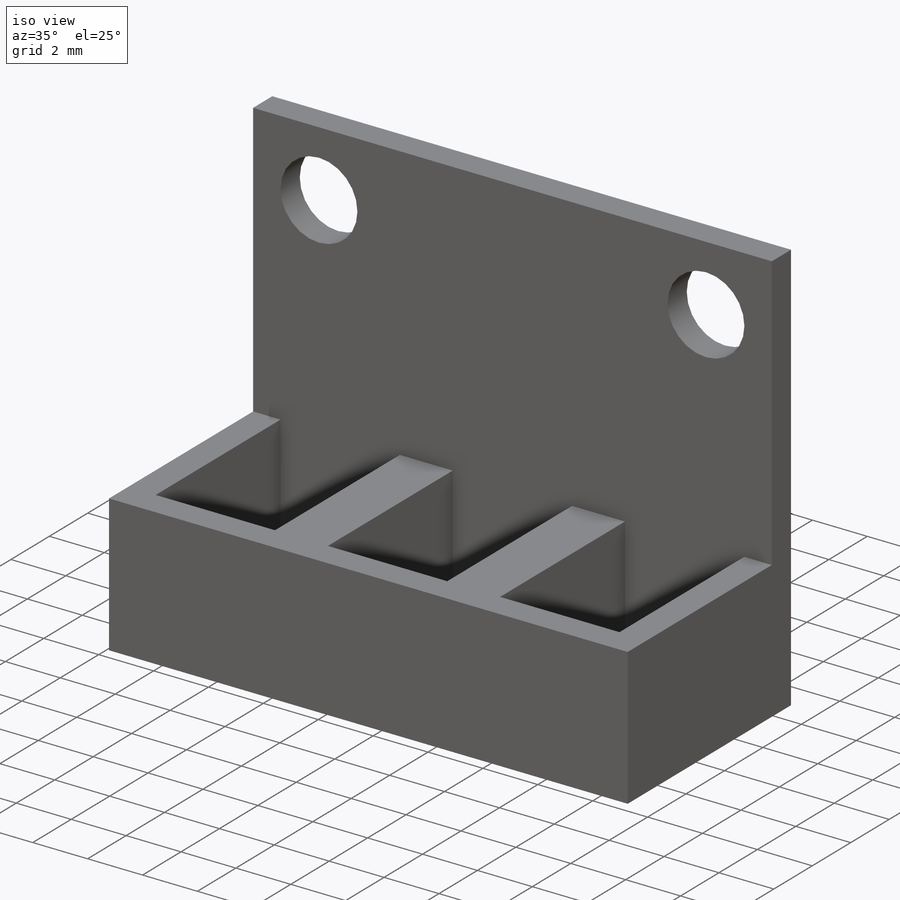
[diagram: iso view]
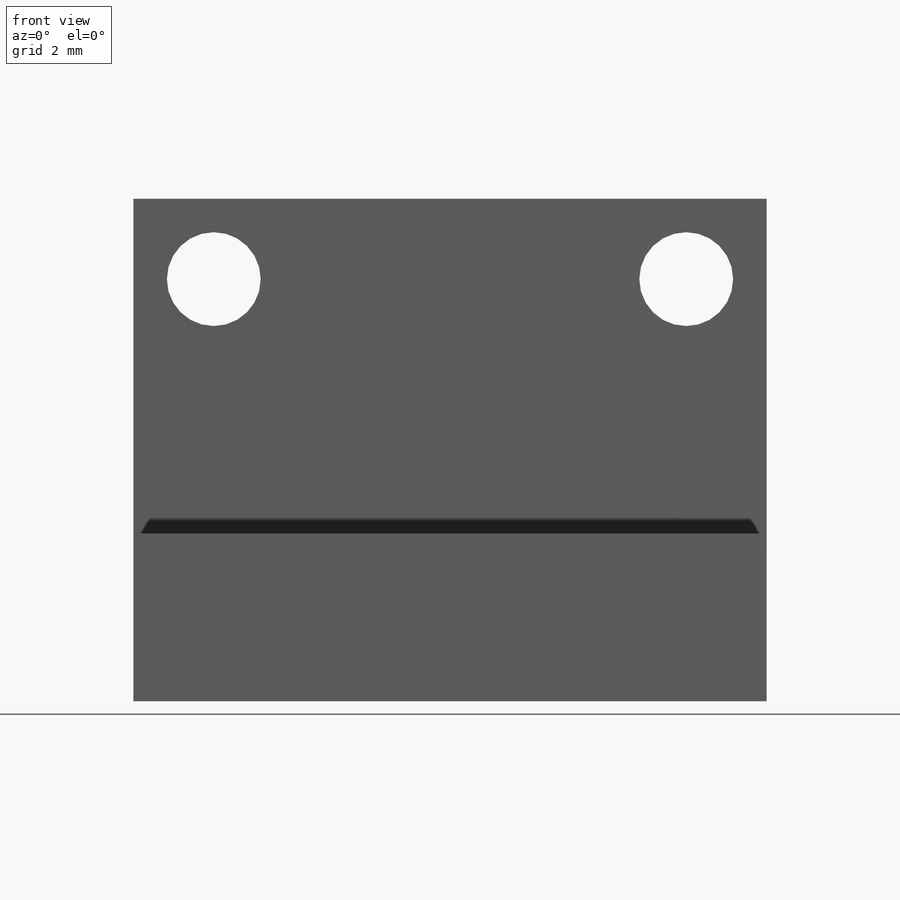
[diagram: front view]
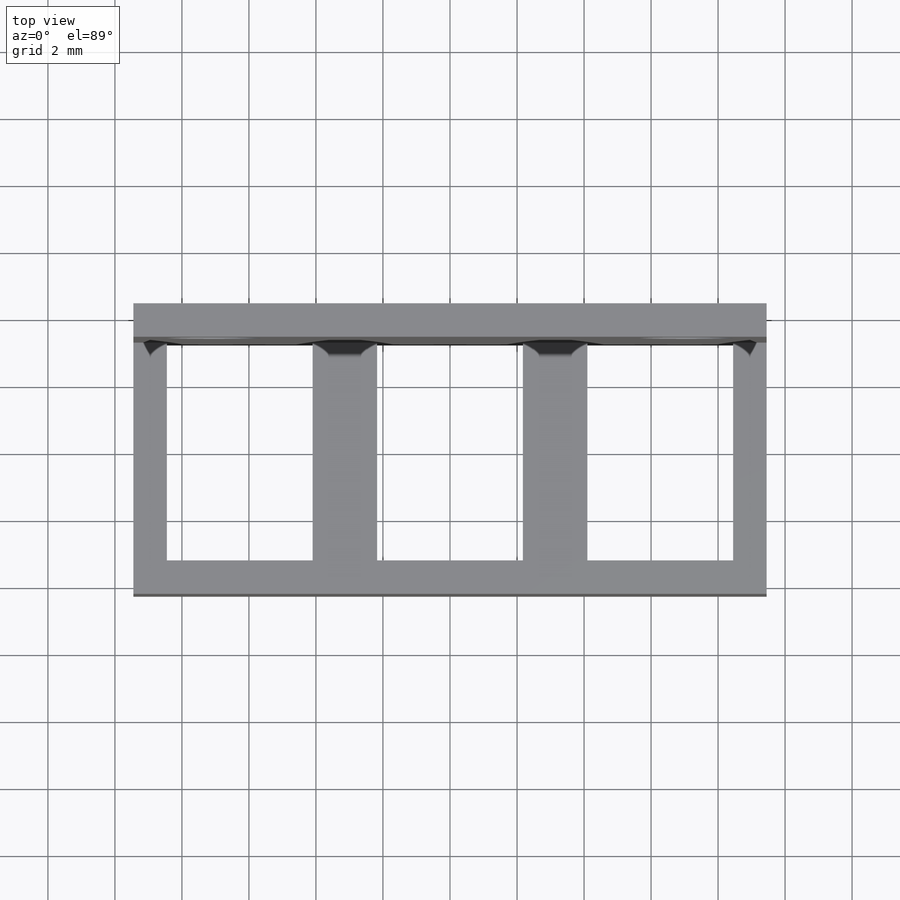
[diagram: top view]
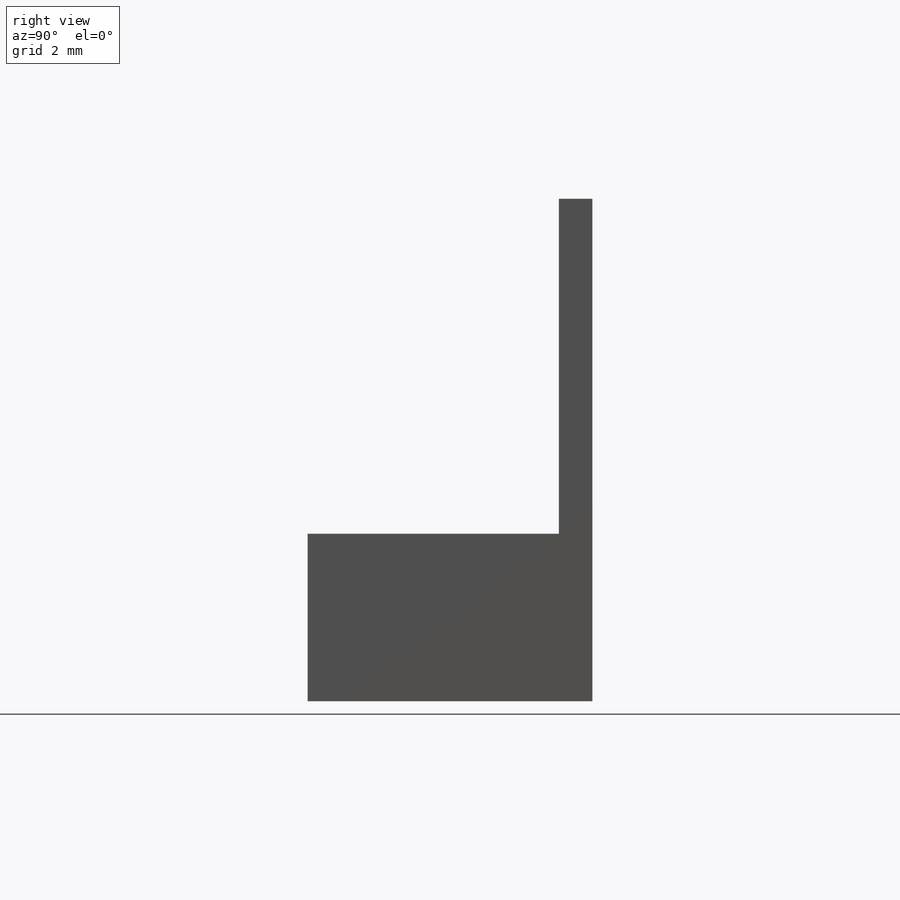
[diagram: right view]
SOLIDWORKS PART (.sldprt)
format: sldprt  version: not decoded by parser v0  size: 370,688 bytes
history: native  units: mm
features: sketch x3, extrude x2, material x1, cut_extrude x1 (+12 scaffold rows collapsed)
feature tree (19):
  scaffold x12  (default folders/planes/origin — collapsed)
  material  "Material <not specified>"
  sketch  "Sketch1"  dims[D1=18.9mm D2=8.5mm D3=6.5mm D4=4.35mm D5=4.35mm D6=4.35mm D7=16.9mm D8=8.45mm]
  extrude  "Boss-Extrude1"  Depth=5mm
  sketch  "Sketch2"  dims[D1=1.0mm]
  extrude  "Boss-Extrude2"  Depth=10mm
  sketch  "Sketch3"  dims[c1.D1=2.8mm c1.D2=2.8mm c1.D3=2.4mm c1.D4=2.4mm c2.D3=2.4mm c2.D4=2.4mm c2.D5=2.4mm c2.D6=5.0mm c3.D5=2.4mm c3.D6=2.4mm]
  cut_extrude  "Cut-Extrude1"  [1 undecoded]
decode coverage: 5 of 6 modeling features carry decoded parameters
note: 1 parameter value undecoded
note: suppression state not decoded; provenance and decode notes live in map.json
